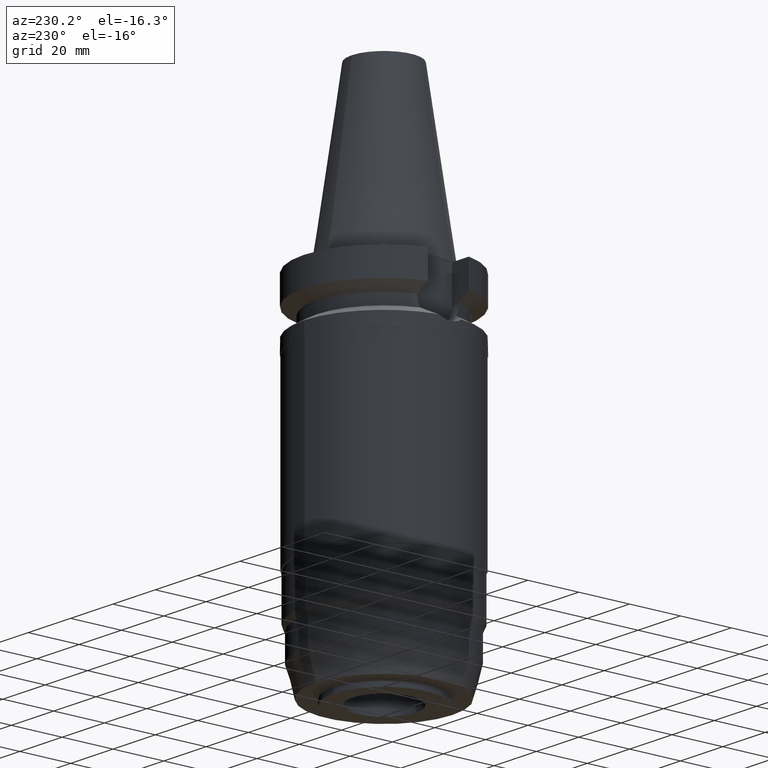
[diagram: clean part render]
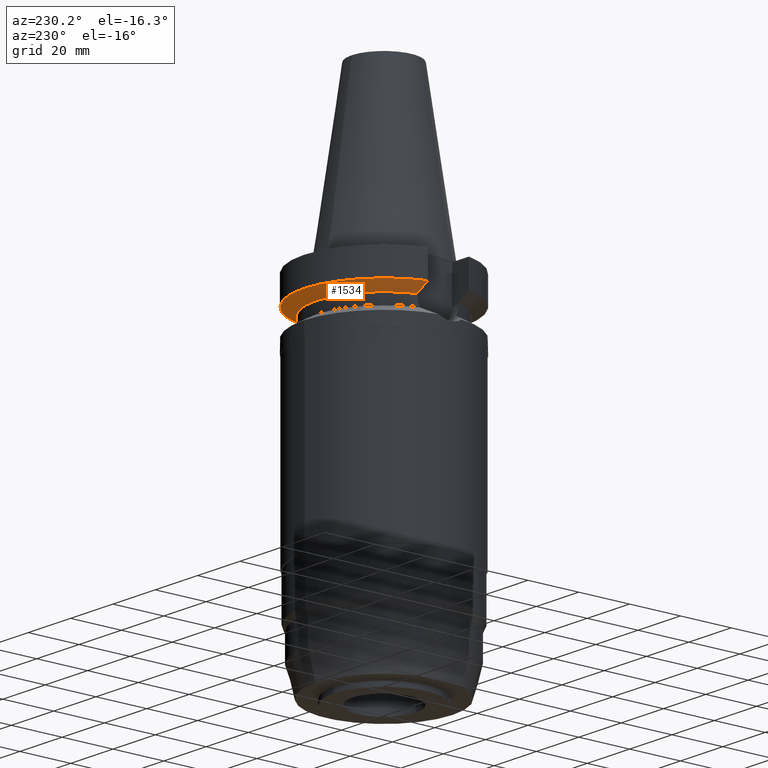
[diagram: same view with one face highlighted and labeled with its STEP entity id]
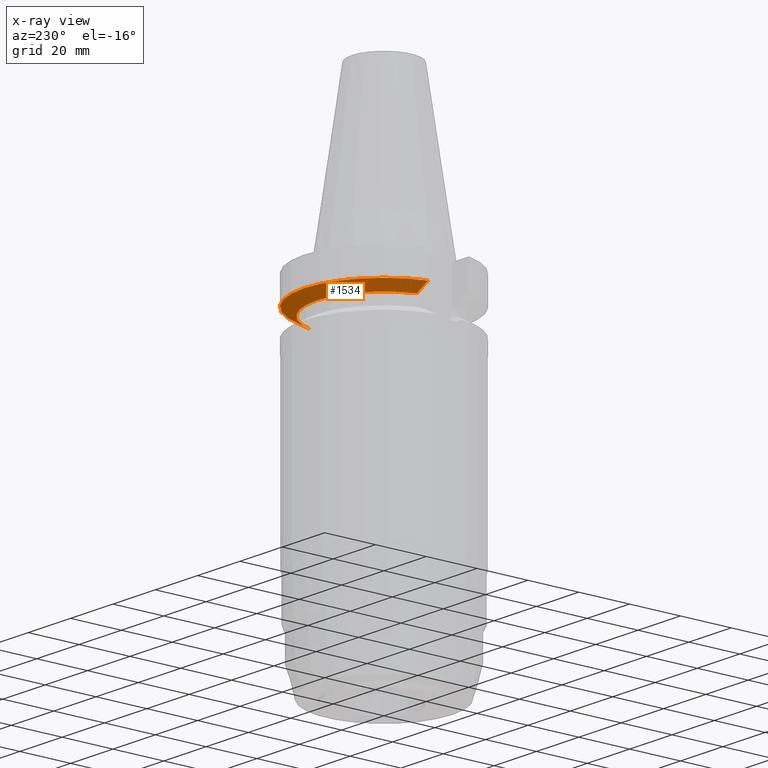
[diagram: x-ray of the same camera — body ghosted, the highlighted face saturated]
A machine part, auxiliary view. The second image highlights one B-rep face of the part: STEP entity #1534.
The next image is the same camera in x-ray: the body ghosted, the highlighted face saturated — about 0% of this face is hidden behind the body in this view.
In plain terms, the highlighted conical surface has half-angle 60 deg.
Its self-contained STEP definition (entity closure, byte-faithful):
#344=CARTESIAN_POINT('',(3.045402291367E1,8.049999277887E0,-1.156551215659E1));
#345=CARTESIAN_POINT('',(2.987645774289E1,8.049999277887E0,-1.188789690692E1));
#346=CARTESIAN_POINT('',(2.872091200609E1,8.049999725834E0,-1.253193852554E1));
#347=CARTESIAN_POINT('',(2.698538663850E1,8.050002042750E0,-1.349404339455E1));
#348=CARTESIAN_POINT('',(2.582730530093E1,8.049995416361E0,-1.413348340581E1));
#349=CARTESIAN_POINT('',(2.524772413103E1,8.049995416361E0,-1.445229202359E1));
#388=CARTESIAN_POINT('',(-2.524772216377E1,8.050001586410E0,-1.445224487704E1));
#389=CARTESIAN_POINT('',(-2.582727361571E1,8.050001586410E0,-1.413345268065E1));
#390=CARTESIAN_POINT('',(-2.698547393864E1,8.049999812145E0,-1.349419204104E1));
#391=CARTESIAN_POINT('',(-2.872100161986E1,8.049998277879E0,-1.253209181700E1));
#392=CARTESIAN_POINT('',(-2.987642831141E1,8.050004143520E0,-1.188786874922E1));
#393=CARTESIAN_POINT('',(-3.045402162752E1,8.050004143520E0,-1.156546832960E1));
#398=CARTESIAN_POINT('',(0.E0,1.065333950388E-14,-1.445225699861E1));
#399=DIRECTION('',(0.E0,0.E0,-1.E0));
#400=DIRECTION('',(-9.527442516822E-1,3.037735849057E-1,0.E0));
#401=AXIS2_PLACEMENT_3D('',#398,#399,#400);
#406=CARTESIAN_POINT('',(0.E0,1.065333950388E-14,-1.445225699861E1));
#407=DIRECTION('',(0.E0,0.E0,-1.E0));
#408=DIRECTION('',(0.E0,1.E0,0.E0));
#409=AXIS2_PLACEMENT_3D('',#406,#407,#408);
#414=CARTESIAN_POINT('',(0.E0,1.065333950388E-14,-1.156550565267E1));
#415=DIRECTION('',(0.E0,0.E0,1.E0));
#416=DIRECTION('',(9.667943721520E-1,2.555555555555E-1,0.E0));
#417=AXIS2_PLACEMENT_3D('',#414,#415,#416);
#422=CARTESIAN_POINT('',(0.E0,1.065333950388E-14,-1.156550565267E1));
#423=DIRECTION('',(0.E0,0.E0,1.E0));
#424=DIRECTION('',(0.E0,1.E0,0.E0));
#425=AXIS2_PLACEMENT_3D('',#422,#423,#424);
#1189=CARTESIAN_POINT('',(-2.524772216377E1,8.050001586410E0,
-1.445224487704E1));
#1190=VERTEX_POINT('',#1189);
#1191=CARTESIAN_POINT('',(2.524772413103E1,8.049995416361E0,-1.445229202359E1));
#1192=VERTEX_POINT('',#1191);
#1193=CARTESIAN_POINT('',(0.E0,2.65E1,-1.445225699861E1));
#1194=VERTEX_POINT('',#1193);
#1225=VERTEX_POINT('',#393);
#1230=VERTEX_POINT('',#344);
#1231=CARTESIAN_POINT('',(0.E0,3.15E1,-1.156550565267E1));
#1232=VERTEX_POINT('',#1231);
#1519=CARTESIAN_POINT('',(0.E0,1.065333950388E-14,-1.300888132564E1));
#1520=DIRECTION('',(0.E0,0.E0,1.E0));
#1521=DIRECTION('',(0.E0,1.E0,0.E0));
#1522=AXIS2_PLACEMENT_3D('',#1519,#1520,#1521);
#1523=CONICAL_SURFACE('',#1522,2.9E1,6.E1);
#1524=ORIENTED_EDGE('',*,*,#1508,.F.);
#1525=ORIENTED_EDGE('',*,*,#1497,.T.);
#1526=ORIENTED_EDGE('',*,*,#1495,.T.);
#1527=ORIENTED_EDGE('',*,*,#1474,.F.);
#1529=ORIENTED_EDGE('',*,*,#1528,.T.);
#1531=ORIENTED_EDGE('',*,*,#1530,.T.);
#1532=EDGE_LOOP('',(#1524,#1525,#1526,#1527,#1529,#1531));
#1533=FACE_OUTER_BOUND('',#1532,.F.);
#350=B_SPLINE_CURVE_WITH_KNOTS('',3,(#344,#345,#346,#347,#348,#349),
.UNSPECIFIED.,.F.,.F.,(4,1,1,4),(0.E0,3.333333333333E-1,6.666666666667E-1,1.E0),
.UNSPECIFIED.);
#394=B_SPLINE_CURVE_WITH_KNOTS('',3,(#388,#389,#390,#391,#392,#393),
.UNSPECIFIED.,.F.,.F.,(4,1,1,4),(0.E0,3.333333333333E-1,6.666666666667E-1,1.E0),
.UNSPECIFIED.);
#402=CIRCLE('',#401,2.65E1);
#410=CIRCLE('',#409,2.65E1);
#418=CIRCLE('',#417,3.15E1);
#426=CIRCLE('',#425,3.15E1);
#1474=EDGE_CURVE('',#1230,#1192,#350,.T.);
#1495=EDGE_CURVE('',#1194,#1192,#410,.T.);
#1497=EDGE_CURVE('',#1190,#1194,#402,.T.);
#1508=EDGE_CURVE('',#1190,#1225,#394,.T.);
#1528=EDGE_CURVE('',#1230,#1232,#418,.T.);
#1530=EDGE_CURVE('',#1232,#1225,#426,.T.);
#1534=ADVANCED_FACE('',(#1533),#1523,.T.);